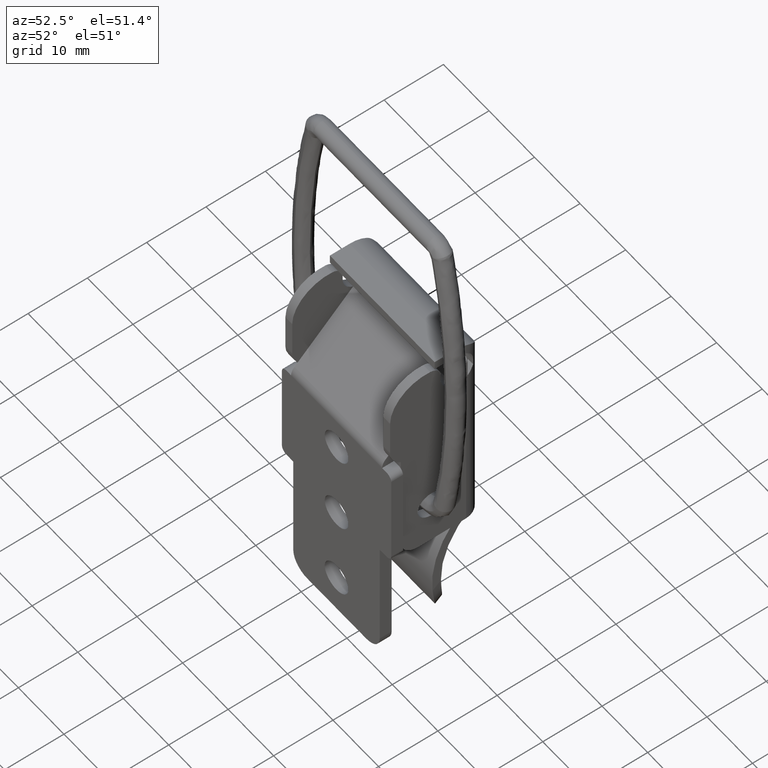
[diagram: clean part render]
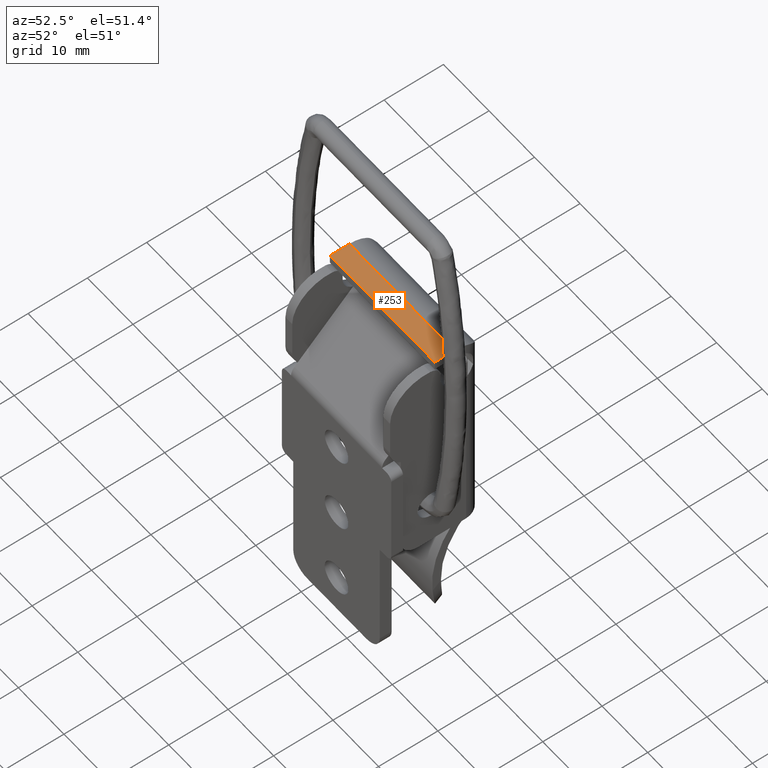
[diagram: same view with one face highlighted and labeled with its STEP entity id]
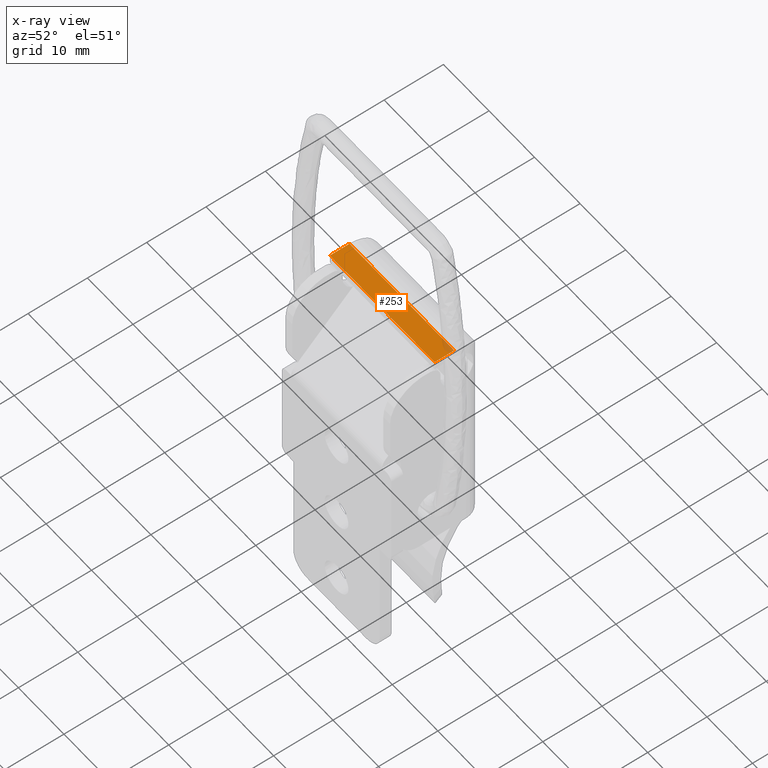
[diagram: x-ray of the same camera — body ghosted, the highlighted face saturated]
A machine part, auxiliary view. The second image highlights one B-rep face of the part: STEP entity #253.
The next image is the same camera in x-ray: the body ghosted, the highlighted face saturated — about 2% of this face is hidden behind the body in this view.
In plain terms, the highlighted planar face has unit normal (0, 0, -1).
Its self-contained STEP definition (entity closure, byte-faithful):
#253=ADVANCED_FACE('',(#1320),#1319,.F.);
#1319=PLANE('',#2272);
#1320=FACE_OUTER_BOUND('',#2273,.T.);
#2269=CARTESIAN_POINT('',(4.12999999997E+00,-2.30000000000E+00,3.00000000000E+01));
#2270=DIRECTION('',(0.00000000000E+00,0.00000000000E+00,-1.00000000000E+00));
#2271=DIRECTION('',(-1.00000000000E+00,0.00000000000E+00,0.00000000000E+00));
#2272=AXIS2_PLACEMENT_3D('',#2269,#2270,#2271);
#2273=EDGE_LOOP('',(#2926,#2927,#2928,#2929));
#2926=ORIENTED_EDGE('',*,*,#3232,.T.);
#2927=ORIENTED_EDGE('',*,*,#3201,.F.);
#2928=ORIENTED_EDGE('',*,*,#3264,.T.);
#2929=ORIENTED_EDGE('',*,*,#3313,.T.);
#3201=EDGE_CURVE('',#4650,#4657,#4658,.T.);
#3232=EDGE_CURVE('',#4867,#4657,#4868,.T.);
#3264=EDGE_CURVE('',#4650,#5080,#5087,.T.);
#3313=EDGE_CURVE('',#5080,#4867,#5411,.T.);
#4650=VERTEX_POINT('',#6389);
#4657=VERTEX_POINT('',#6394);
#4658=LINE('',#6395,#6396);
#4867=VERTEX_POINT('',#6552);
#4868=LINE('',#6553,#6554);
#5080=VERTEX_POINT('',#6685);
#5087=LINE('',#6689,#6690);
#5411=LINE('',#6979,#6980);
#6389=CARTESIAN_POINT('',(3.79999999997E+00,2.30000000000E+01,3.00000000000E+01));
#6394=CARTESIAN_POINT('',(3.79999999996E+00,0.00000000000E+00,3.00000000000E+01));
#6395=CARTESIAN_POINT('',(3.79999999996E+00,2.30000000000E+01,3.00000000000E+01));
#6396=VECTOR('',#6397,2.30000000000E+01);
#6397=DIRECTION('',(0.00000000000E+00,-1.00000000000E+00,0.00000000000E+00));
#6552=CARTESIAN_POINT('',(4.99999999964E-01,0.00000000000E+00,3.00000000000E+01));
#6553=CARTESIAN_POINT('',(4.99999999964E-01,0.00000000000E+00,3.00000000000E+01));
#6554=VECTOR('',#6555,3.30000000000E+00);
#6555=DIRECTION('',(1.00000000000E+00,0.00000000000E+00,0.00000000000E+00));
#6685=CARTESIAN_POINT('',(4.99999999964E-01,2.30000000000E+01,3.00000000000E+01));
#6689=CARTESIAN_POINT('',(3.79999999997E+00,2.30000000000E+01,3.00000000000E+01));
#6690=VECTOR('',#6691,3.30000000000E+00);
#6691=DIRECTION('',(-1.00000000000E+00,0.00000000000E+00,-1.07657990267E-15));
#6979=CARTESIAN_POINT('',(4.99999999964E-01,2.30000000000E+01,3.00000000000E+01));
#6980=VECTOR('',#6981,2.30000000000E+01);
#6981=DIRECTION('',(0.00000000000E+00,-1.00000000000E+00,0.00000000000E+00));